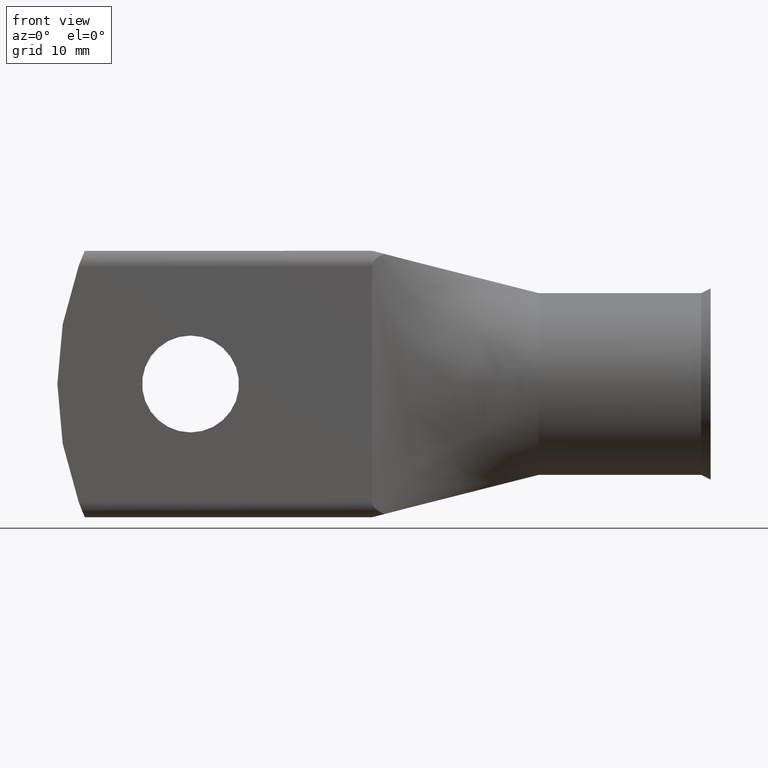
[diagram: clean part render]
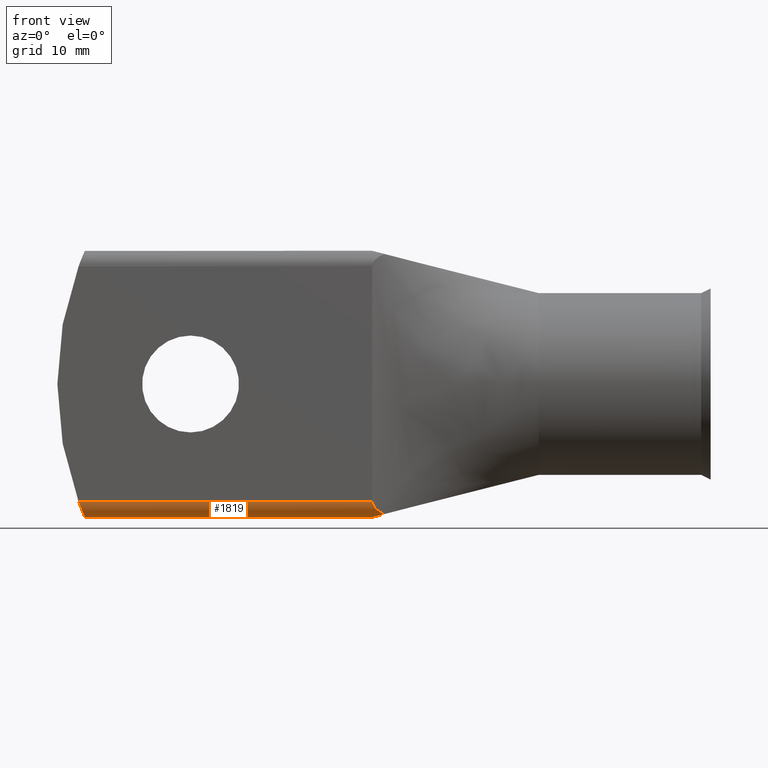
[diagram: same view with one face highlighted and labeled with its STEP entity id]
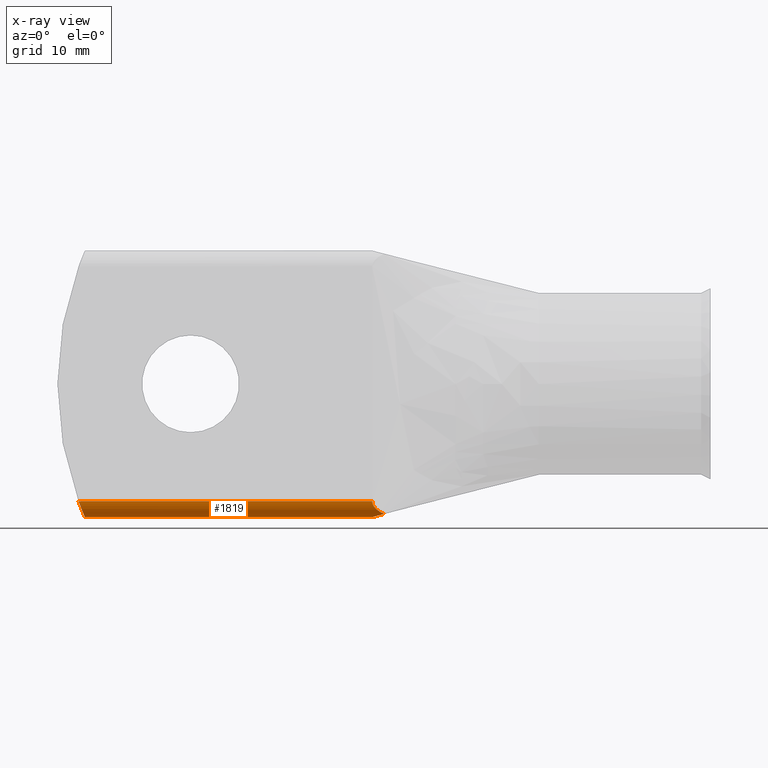
[diagram: x-ray of the same camera — body ghosted, the highlighted face saturated]
A machine part, front view. The second image highlights one B-rep face of the part: STEP entity #1819.
The next image is the same camera in x-ray: the body ghosted, the highlighted face saturated — about 0% of this face is hidden behind the body in this view.
In plain terms, the highlighted cylindrical surface (edge-blend (fillet) strip) has radius 1.651 mm, axis along (1, 0, 0).
Its self-contained STEP definition (entity closure, byte-faithful):
#17 = CARTESIAN_POINT ( 'NONE',  ( 0.6652084431300474554, -0.02233573492214462747, -0.5461213083738600815 ) ) ;
#57 = ORIENTED_EDGE ( 'NONE', *, *, #2912, .F. ) ;
#117 = EDGE_CURVE ( 'NONE', #1610, #4112, #1327, .T. ) ;
#225 = CARTESIAN_POINT ( 'NONE',  ( -0.5627381903521790907, -0.06500000000000000222, -0.4849999999999994871 ) ) ;
#245 = ORIENTED_EDGE ( 'NONE', *, *, #4133, .F. ) ;
#254 = CARTESIAN_POINT ( 'NONE',  ( -0.5366859254650457878, -5.332088992847837744E-11, -0.5500000124907826748 ) ) ;
#256 = CARTESIAN_POINT ( 'NONE',  ( 0.6499999999999999112, -0.06500000000000000222, -0.4850000000000000977 ) ) ;
#303 = CARTESIAN_POINT ( 'NONE',  ( -0.5476509285152141304, -0.05231646446220573204, -0.5237982618818051161 ) ) ;
#334 = CYLINDRICAL_SURFACE ( 'NONE', #3381, 0.06499999999999998834 ) ;
#385 = VECTOR ( 'NONE', #2734, 39.37007874015748143 ) ;
#502 = EDGE_LOOP ( 'NONE', ( #2579, #1868, #1506, #57, #4681, #245 ) ) ;
#582 = CARTESIAN_POINT ( 'NONE',  ( -0.5366859254650457878, -5.332088992847837744E-11, -0.5500000124907826748 ) ) ;
#698 = FACE_OUTER_BOUND ( 'NONE', #502, .T. ) ;
#731 = B_SPLINE_CURVE_WITH_KNOTS ( 'NONE', 3,
 ( #254, #1465, #2270, #1025, #5056, #4688, #2613, #3050, #303, #2218, #4640, #4199, #4300, #225 ),
 .UNSPECIFIED., .F., .F.,
 ( 4, 2, 2, 2, 2, 2, 4 ),
 ( 0.5004111386689699126, 0.5628597463353486319, 0.6253083540017273512, 0.7502055693344849008, 0.8126541770008637311, 0.8751027846672424504, 1.000000000000000000 ),
 .UNSPECIFIED. ) ;
#843 = DIRECTION ( 'NONE',  ( 1.000000000000000000, 0.000000000000000000, 0.000000000000000000 ) ) ;
#937 = VERTEX_POINT ( 'NONE', #5129 ) ;
#1025 = CARTESIAN_POINT ( 'NONE',  ( -0.5376414982918221730, -0.01742466073938154364, -0.5477748994708055985 ) ) ;
#1084 = CARTESIAN_POINT ( 'NONE',  ( 0.6500000000000000222, 0.000000000000000000, -0.4850000000000000977 ) ) ;
#1211 = CARTESIAN_POINT ( 'NONE',  ( 0.6507761023345930429, -0.005654155294096869372, -0.5498026340316088945 ) ) ;
#1230 = CARTESIAN_POINT ( 'NONE',  ( 0.6361814578938042031, 0.000000000000000000, -0.5500000000000000444 ) ) ;
#1327 = LINE ( 'NONE', #4397, #3212 ) ;
#1340 = CARTESIAN_POINT ( 'NONE',  ( 0.6889634406949919354, -0.04490238067934738952, -0.5321835764219116083 ) ) ;
#1453 = VECTOR ( 'NONE', #843, 39.37007874015748143 ) ;
#1465 = CARTESIAN_POINT ( 'NONE',  ( -0.5366854136268845998, -0.004400964988959307940, -0.5500012019262755514 ) ) ;
#1492 = CARTESIAN_POINT ( 'NONE',  ( 0.6998873381343300171, -0.03883504607893028399, -0.5371233076084719338 ) ) ;
#1506 = ORIENTED_EDGE ( 'NONE', *, *, #117, .F. ) ;
#1534 = LINE ( 'NONE', #3121, #385 ) ;
#1568 = CARTESIAN_POINT ( 'NONE',  ( 0.6549725263400797415, -0.01293630533324573173, -0.5487343559334141307 ) ) ;
#1610 = VERTEX_POINT ( 'NONE', #2595 ) ;
#1707 = VERTEX_POINT ( 'NONE', #3816 ) ;
#1819 = ADVANCED_FACE ( 'NONE', ( #698 ), #334, .T. ) ;
#1830 = CARTESIAN_POINT ( 'NONE',  ( 0.6524317899654541453, -0.06387312272778239430, -0.4983860355022783351 ) ) ;
#1868 = ORIENTED_EDGE ( 'NONE', *, *, #4341, .T. ) ;
#2119 = CARTESIAN_POINT ( 'NONE',  ( 0.6593644356050306632, -0.06047330104018210778, -0.5095344984617602435 ) ) ;
#2218 = CARTESIAN_POINT ( 'NONE',  ( -0.5504696975856362418, -0.05683899048515590746, -0.5168068874881354136 ) ) ;
#2243 = EDGE_CURVE ( 'NONE', #4603, #937, #731, .T. ) ;
#2270 = CARTESIAN_POINT ( 'NONE',  ( -0.5368810080141551699, -0.008825335886310339481, -0.5495472904157676641 ) ) ;
#2472 = CARTESIAN_POINT ( 'NONE',  ( 0.6998873381343300171, -0.03883504607893028399, -0.5371233076084719338 ) ) ;
#2510 = CARTESIAN_POINT ( 'NONE',  ( 0.6637975567854861314, -0.05824140993821200901, -0.5142570314518258856 ) ) ;
#2558 = EDGE_CURVE ( 'NONE', #1707, #4785, #4509, .T. ) ;
#2579 = ORIENTED_EDGE ( 'NONE', *, *, #2243, .F. ) ;
#2595 = CARTESIAN_POINT ( 'NONE',  ( 0.6499999999999999112, 1.707404996040164512E-17, -0.5500000000000000444 ) ) ;
#2613 = CARTESIAN_POINT ( 'NONE',  ( -0.5425346599393188196, -0.04086592548103146205, -0.5362442248933960709 ) ) ;
#2669 = DIRECTION ( 'NONE',  ( 1.000000000000000000, 0.000000000000000000, 0.000000000000000000 ) ) ;
#2716 = CARTESIAN_POINT ( 'NONE',  ( 0.6606702314945726018, -0.01907094476554405116, -0.5472813258805394598 ) ) ;
#2734 = DIRECTION ( 'NONE',  ( 1.000000000000000000, 0.000000000000000000, 0.000000000000000000 ) ) ;
#2770 = CARTESIAN_POINT ( 'NONE',  ( 0.6746111723173703334, -0.02807708659309466476, -0.5437058480927466908 ) ) ;
#2814 = LINE ( 'NONE', #4402, #1453 ) ;
#2912 = EDGE_CURVE ( 'NONE', #4785, #1610, #4197, .T. ) ;
#2924 = CARTESIAN_POINT ( 'NONE',  ( 0.6943676943437014915, -0.04192468545983751155, -0.5348213376600930991 ) ) ;
#3050 = CARTESIAN_POINT ( 'NONE',  ( -0.5462796481674964122, -0.04965426165163206590, -0.5271571714927444363 ) ) ;
#3121 = CARTESIAN_POINT ( 'NONE',  ( 0.7414427422665539336, -0.06500000000000000222, -0.4850000000000000977 ) ) ;
#3130 = CARTESIAN_POINT ( 'NONE',  ( 0.6895979186490167612, -0.03501727539745792123, -0.5398221268361050873 ) ) ;
#3212 = VECTOR ( 'NONE', #3692, 39.37007874015748143 ) ;
#3381 = AXIS2_PLACEMENT_3D ( 'NONE', #1084, #2669, #4305 ) ;
#3501 = CARTESIAN_POINT ( 'NONE',  ( 0.6532603867002932940, -0.01065451514310799055, -0.5491703370459412037 ) ) ;
#3692 = DIRECTION ( 'NONE',  ( -1.000000000000000000, 0.000000000000000000, 0.000000000000000000 ) ) ;
#3707 = CARTESIAN_POINT ( 'NONE',  ( 0.6499999999999999112, -0.06500000000000001610, -0.4918774796139006034 ) ) ;
#3816 = CARTESIAN_POINT ( 'NONE',  ( 0.6499999999999999112, -0.06500000000000000222, -0.4850000000000000977 ) ) ;
#4102 = CARTESIAN_POINT ( 'NONE',  ( 0.6733116305413170410, -0.05331255355576896421, -0.5224940975931847698 ) ) ;
#4112 = VERTEX_POINT ( 'NONE', #1230 ) ;
#4133 = EDGE_CURVE ( 'NONE', #937, #1707, #1534, .T. ) ;
#4197 = B_SPLINE_CURVE_WITH_KNOTS ( 'NONE', 3,
 ( #4797, #5136, #3130, #4769, #2770, #17, #2716, #1568, #3501, #1211, #5082, #4744 ),
 .UNSPECIFIED., .F., .F.,
 ( 4, 2, 2, 2, 2, 4 ),
 ( 2.168404344971008627E-19, 0.0004300654237321379020, 0.0008601308474642755872, 0.001290196271196413381, 0.001505228983062478374, 0.001720261694928543368 ),
 .UNSPECIFIED. ) ;
#4199 = CARTESIAN_POINT ( 'NONE',  ( -0.5564880650025566533, -0.06340358309111379653, -0.5015547186800105584 ) ) ;
#4300 = CARTESIAN_POINT ( 'NONE',  ( -0.5596494246365599778, -0.06499999999999994671, -0.4933057924776004244 ) ) ;
#4305 = DIRECTION ( 'NONE',  ( 0.000000000000000000, 0.000000000000000000, -1.000000000000000000 ) ) ;
#4341 = EDGE_CURVE ( 'NONE', #4603, #4112, #2814, .T. ) ;
#4397 = CARTESIAN_POINT ( 'NONE',  ( 0.6500000000000000222, 0.000000000000000000, -0.5500000000000000444 ) ) ;
#4402 = CARTESIAN_POINT ( 'NONE',  ( 0.6500000000000000222, 0.000000000000000000, -0.5500000000000000444 ) ) ;
#4509 = B_SPLINE_CURVE_WITH_KNOTS ( 'NONE', 3,
 ( #256, #3707, #1830, #2119, #2510, #4102, #4900, #1340, #2924, #1492 ),
 .UNSPECIFIED., .F., .F.,
 ( 4, 2, 2, 2, 4 ),
 ( 0.000000000000000000, 0.0005152612085164446016, 0.001030522417032889203, 0.001545783625549333913, 0.002061044834065778406 ),
 .UNSPECIFIED. ) ;
#4603 = VERTEX_POINT ( 'NONE', #582 ) ;
#4640 = CARTESIAN_POINT ( 'NONE',  ( -0.5519406355025020527, -0.05875079024784529702, -0.5131174289940994004 ) ) ;
#4681 = ORIENTED_EDGE ( 'NONE', *, *, #2558, .F. ) ;
#4688 = CARTESIAN_POINT ( 'NONE',  ( -0.5403981983152739144, -0.03361062749377573267, -0.5413044257145905869 ) ) ;
#4744 = CARTESIAN_POINT ( 'NONE',  ( 0.6499999999999999112, 1.707404996040164512E-17, -0.5500000000000000444 ) ) ;
#4769 = CARTESIAN_POINT ( 'NONE',  ( 0.6795613739066257430, -0.03055551135087684542, -0.5424285285653553945 ) ) ;
#4785 = VERTEX_POINT ( 'NONE', #2472 ) ;
#4797 = CARTESIAN_POINT ( 'NONE',  ( 0.6998873381343300171, -0.03883504607893028399, -0.5371233076084719338 ) ) ;
#4900 = CARTESIAN_POINT ( 'NONE',  ( 0.6784629800147911061, -0.05058227045632048002, -0.5260359304770716449 ) ) ;
#5056 = CARTESIAN_POINT ( 'NONE',  ( -0.5382188988083395076, -0.02168911062129762549, -0.5464269692087756480 ) ) ;
#5082 = CARTESIAN_POINT ( 'NONE',  ( 0.6499999999999999112, -0.002837661833410444825, -0.5500000000000002665 ) ) ;
#5129 = CARTESIAN_POINT ( 'NONE',  ( -0.5627381903521790907, -0.06500000000000000222, -0.4849999999999994871 ) ) ;
#5136 = CARTESIAN_POINT ( 'NONE',  ( 0.6947117413655483631, -0.03700604387404721196, -0.5384860259040693542 ) ) ;